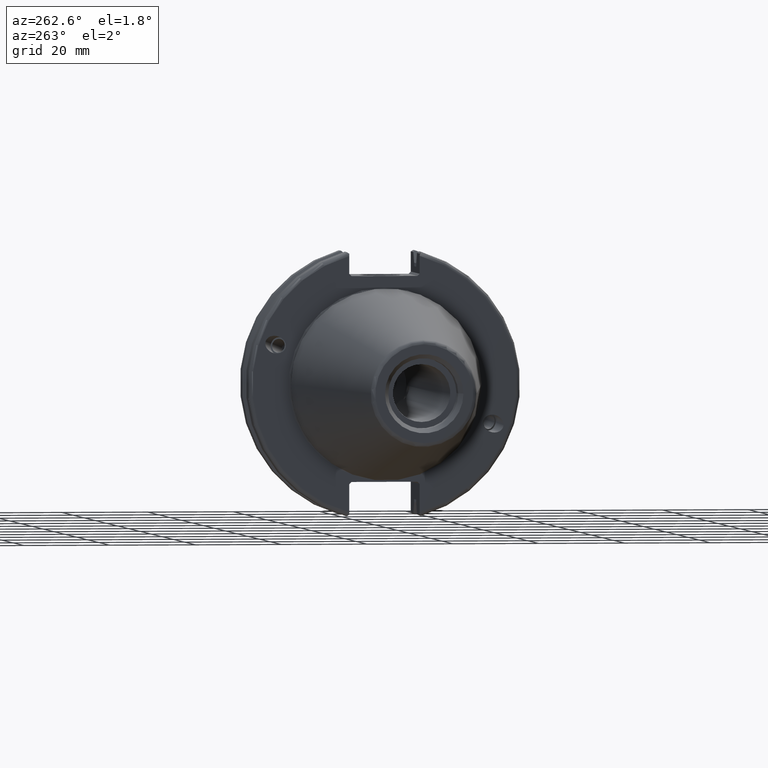
[diagram: clean part render]
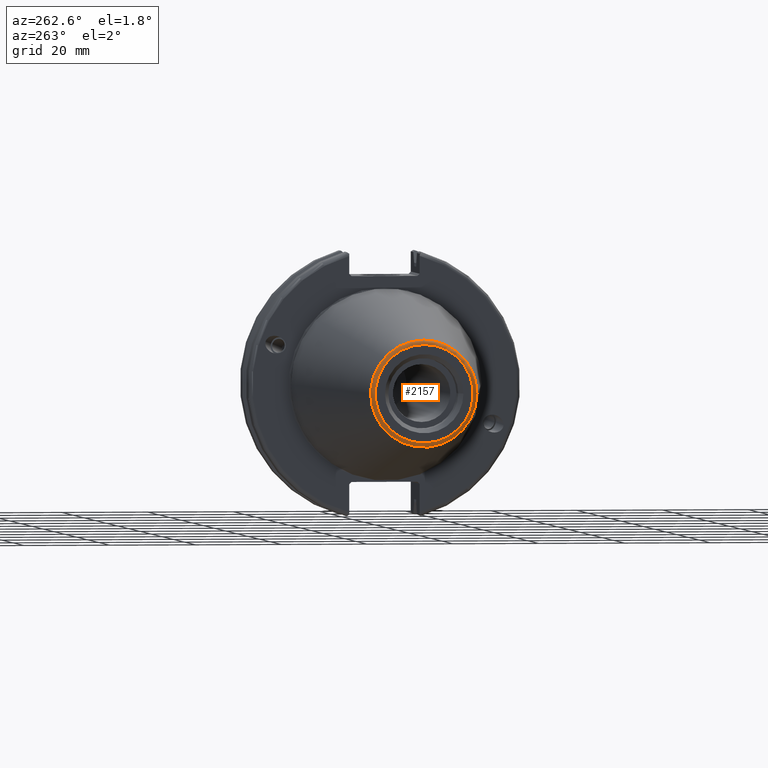
[diagram: same view with one face highlighted and labeled with its STEP entity id]
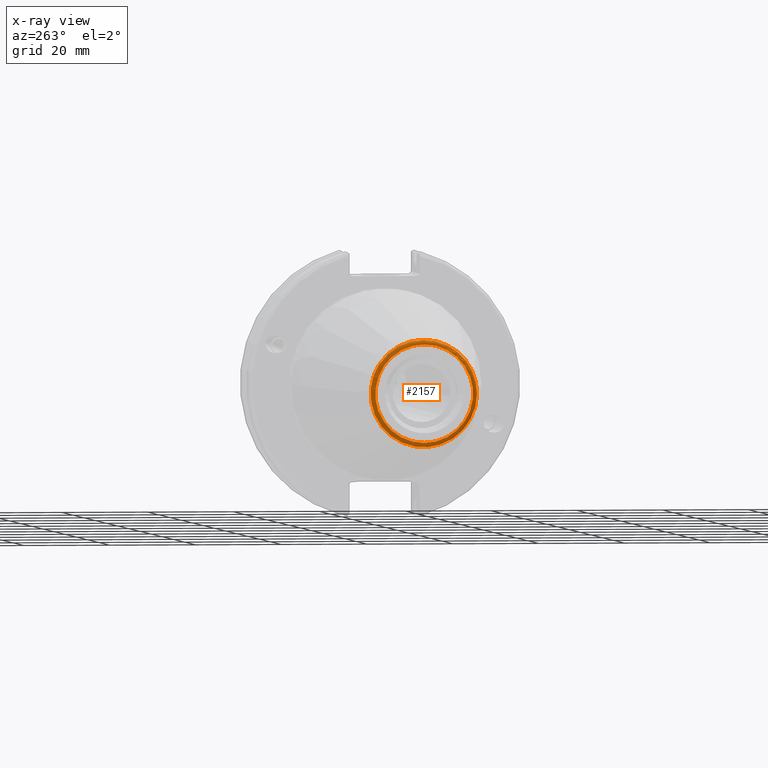
[diagram: x-ray of the same camera — body ghosted, the highlighted face saturated]
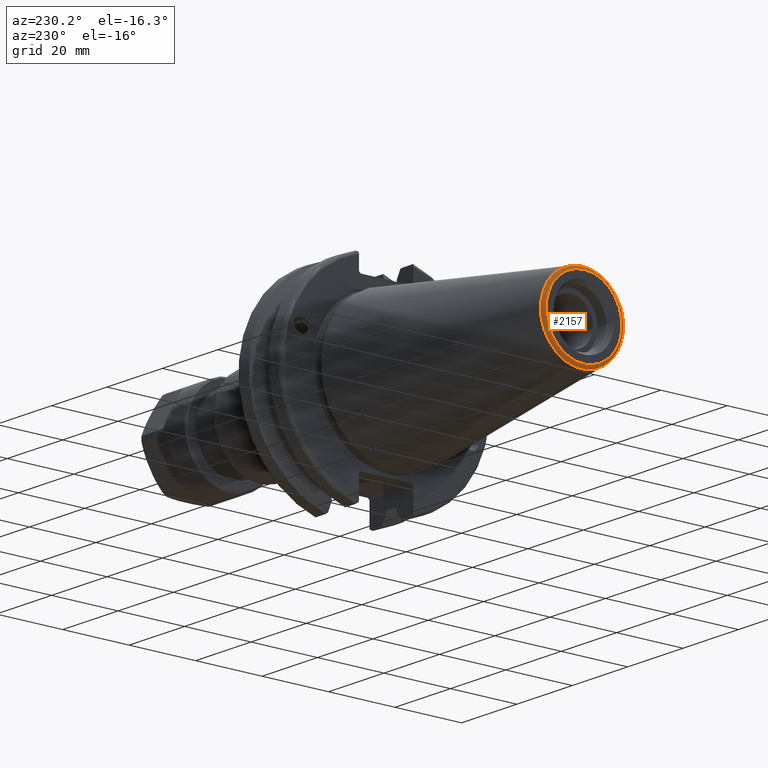
[diagram: same view with one face highlighted and labeled with its STEP entity id]
A machine part, auxiliary view. The second image highlights one B-rep face of the part: STEP entity #2157.
The next image is the same camera in x-ray: the body ghosted, the highlighted face saturated — about 0% of this face is hidden behind the body in this view.
A second angle (auxiliary view) of the same face is appended — the face is thin or edge-on in the first view.
In plain terms, the highlighted toroidal blend (fillet) surface has major radius 11.4071 mm and minor (blend) radius 1 mm.
Its self-contained STEP definition (entity closure, byte-faithful):
#152=TOROIDAL_SURFACE('',#2436,11.4071305970304,1.);
#327=FACE_OUTER_BOUND('',#463,.T.);
#463=EDGE_LOOP('',(#1780,#1781,#1782,#1783,#1784));
#864=CIRCLE('',#2437,12.3966635780937);
#865=CIRCLE('',#2438,12.3966635780937);
#866=CIRCLE('',#2439,1.);
#867=CIRCLE('',#2440,11.4071305970304);
#1056=VERTEX_POINT('',#3924);
#1057=VERTEX_POINT('',#3925);
#1058=VERTEX_POINT('',#3928);
#1324=EDGE_CURVE('',#1056,#1057,#864,.T.);
#1325=EDGE_CURVE('',#1057,#1056,#865,.T.);
#1326=EDGE_CURVE('',#1056,#1058,#866,.T.);
#1327=EDGE_CURVE('',#1058,#1058,#867,.T.);
#1780=ORIENTED_EDGE('',*,*,#1324,.T.);
#1781=ORIENTED_EDGE('',*,*,#1325,.T.);
#1782=ORIENTED_EDGE('',*,*,#1326,.T.);
#1783=ORIENTED_EDGE('',*,*,#1327,.T.);
#1784=ORIENTED_EDGE('',*,*,#1326,.F.);
#2157=ADVANCED_FACE('',(#327),#152,.T.);
#2436=AXIS2_PLACEMENT_3D('',#3923,#2917,#2918);
#2437=AXIS2_PLACEMENT_3D('',#3926,#2919,#2920);
#2438=AXIS2_PLACEMENT_3D('',#3927,#2921,#2922);
#2439=AXIS2_PLACEMENT_3D('',#3929,#2923,#2924);
#2440=AXIS2_PLACEMENT_3D('',#3930,#2925,#2926);
#2917=DIRECTION('center_axis',(1.,0.,0.));
#2918=DIRECTION('ref_axis',(0.,0.,-1.));
#2919=DIRECTION('center_axis',(-1.,0.,0.));
#2920=DIRECTION('ref_axis',(0.,-1.,3.06161699786838E-17));
#2921=DIRECTION('center_axis',(-1.,0.,0.));
#2922=DIRECTION('ref_axis',(0.,-1.,3.06161699786838E-17));
#2923=DIRECTION('center_axis',(0.,-1.,-1.22464679914735E-16));
#2924=DIRECTION('ref_axis',(0.,-1.22464679914735E-16,1.));
#2925=DIRECTION('center_axis',(1.,0.,0.));
#2926=DIRECTION('ref_axis',(0.,-1.,1.83697019872103E-16));
#3923=CARTESIAN_POINT('Origin',(-67.25,0.,0.));
#3924=CARTESIAN_POINT('',(-67.3943068930717,-1.5181534371019E-15,12.3966635780937));
#3925=CARTESIAN_POINT('',(-67.3943068930718,-12.3966635780937,-1.5181534371019E-15));
#3926=CARTESIAN_POINT('Origin',(-67.3943068930717,0.,-1.89769179637738E-15));
#3927=CARTESIAN_POINT('Origin',(-67.3943068930717,0.,-1.89769179637738E-15));
#3928=CARTESIAN_POINT('',(-68.25,-1.39697059731091E-15,11.4071305970304));
#3929=CARTESIAN_POINT('Origin',(-67.25,-1.39697059731091E-15,11.4071305970304));
#3930=CARTESIAN_POINT('Origin',(-68.25,0.,0.));